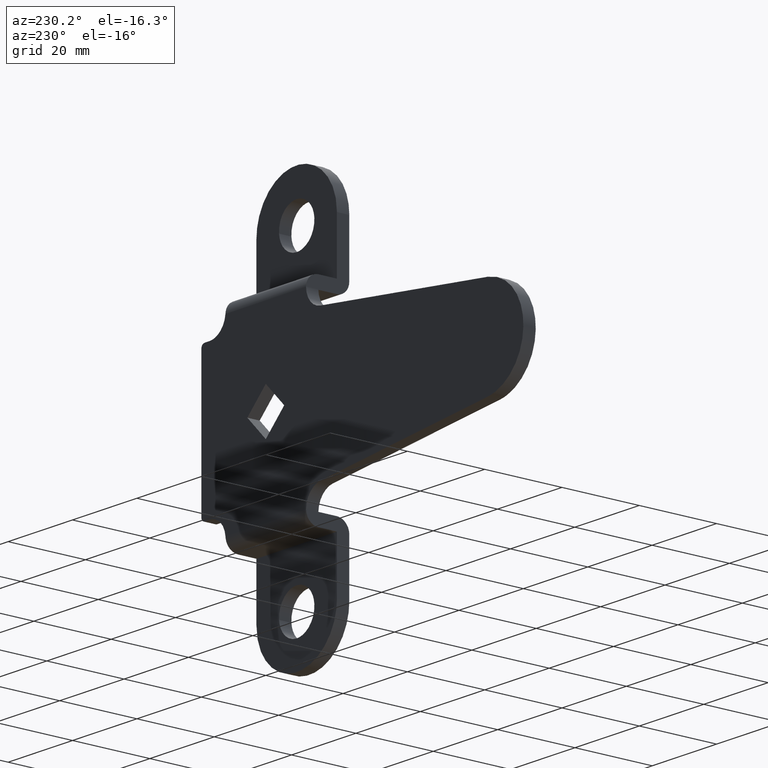
[diagram: clean part render]
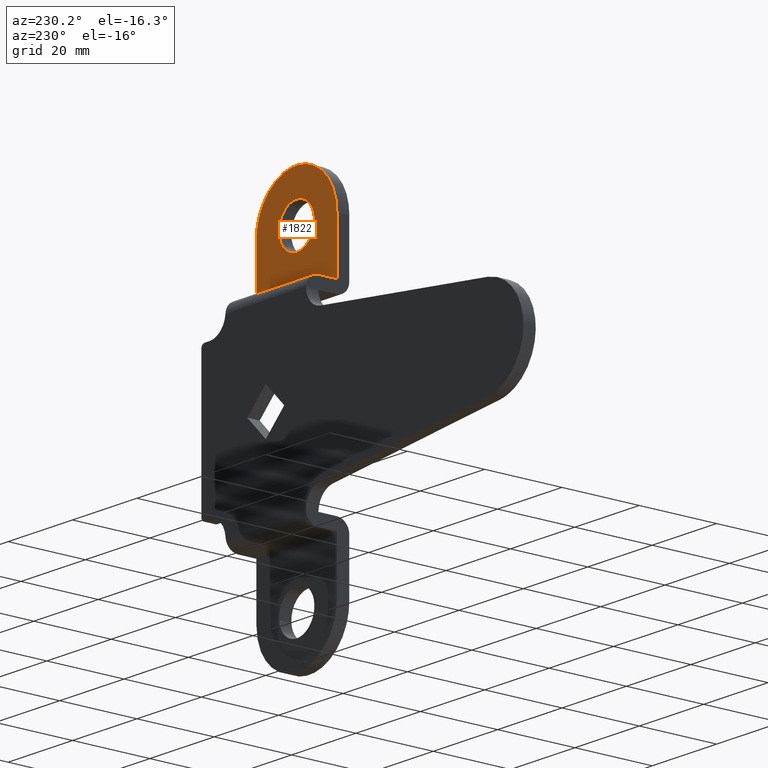
[diagram: same view with one face highlighted and labeled with its STEP entity id]
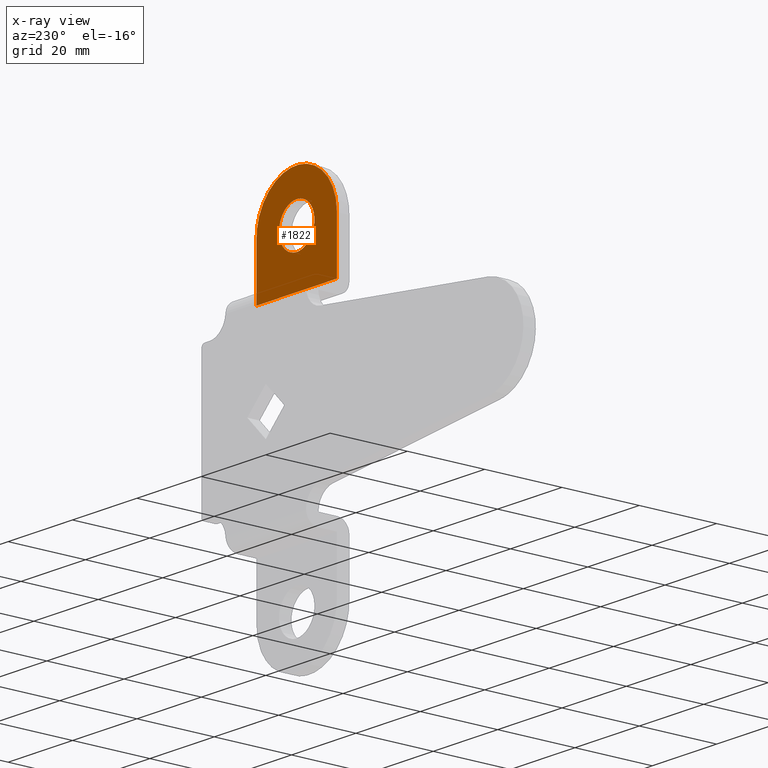
[diagram: x-ray of the same camera — body ghosted, the highlighted face saturated]
A machine part, auxiliary view. The second image highlights one B-rep face of the part: STEP entity #1822.
The next image is the same camera in x-ray: the body ghosted, the highlighted face saturated — about 0% of this face is hidden behind the body in this view.
In plain terms, the highlighted face is a freeform B-spline surface patch.
Its self-contained STEP definition (entity closure, byte-faithful):
#261=CARTESIAN_POINT('',(-5.483045335519359,-8.0,40.431525026666343));
#262=VERTEX_POINT('',#261);
#268=CARTESIAN_POINT('',(0.0,-8.0,45.500000000000000));
#269=VERTEX_POINT('',#268);
#270=CARTESIAN_POINT('',(0.0,-8.0,45.500000000000000));
#271=CARTESIAN_POINT('',(-5.084147703816561,-8.0,45.500000000000000));
#272=CARTESIAN_POINT('',(-5.483045335519359,-8.0,40.431525026666343));
#280=(BOUNDED_CURVE()B_SPLINE_CURVE(2,(#270,#271,#272),.UNSPECIFIED.,.F.,.U.)B_SPLINE_CURVE_WITH_KNOTS((3,3),(0.0,0.236331300622563),.UNSPECIFIED.)CURVE()GEOMETRIC_REPRESENTATION_ITEM()RATIONAL_B_SPLINE_CURVE((1.0,0.723120658617152,0.969723356150520))REPRESENTATION_ITEM(''));
#281=EDGE_CURVE('',#269,#262,#280,.T.);
#283=CARTESIAN_POINT('',(5.483045335519360,-8.0,39.568474973333657));
#284=VERTEX_POINT('',#283);
#285=CARTESIAN_POINT('',(5.483045335519360,-8.0,39.568474973333664));
#286=CARTESIAN_POINT('',(5.500000000000000,-8.0,39.783904411293861));
#287=CARTESIAN_POINT('',(5.500000000000000,-8.0,40.0));
#288=CARTESIAN_POINT('',(5.500000000000001,-8.0,45.500000000000014));
#289=CARTESIAN_POINT('',(0.0,-8.0,45.500000000000000));
#297=(BOUNDED_CURVE()B_SPLINE_CURVE(2,(#285,#286,#287,#288,#289),.UNSPECIFIED.,.F.,.U.)B_SPLINE_CURVE_WITH_KNOTS((3,2,3),(0.736331300622563,0.750000000000000,1.0),.UNSPECIFIED.)CURVE()GEOMETRIC_REPRESENTATION_ITEM()RATIONAL_B_SPLINE_CURVE((0.969723356150520,0.983986122569396,1.0,0.707106781186548,1.0))REPRESENTATION_ITEM(''));
#298=EDGE_CURVE('',#284,#269,#297,.T.);
#374=CARTESIAN_POINT('',(0.0,-8.0,34.500000000000000));
#375=VERTEX_POINT('',#374);
#376=CARTESIAN_POINT('',(0.0,-8.0,34.500000000000000));
#377=CARTESIAN_POINT('',(5.084147703816578,-8.0,34.500000000000007));
#378=CARTESIAN_POINT('',(5.483045335519360,-8.0,39.568474973333672));
#386=(BOUNDED_CURVE()B_SPLINE_CURVE(2,(#376,#377,#378),.UNSPECIFIED.,.F.,.U.)B_SPLINE_CURVE_WITH_KNOTS((3,3),(0.500000000000000,0.736331300622563),.UNSPECIFIED.)CURVE()GEOMETRIC_REPRESENTATION_ITEM()RATIONAL_B_SPLINE_CURVE((1.0,0.723120658617151,0.969723356150521))REPRESENTATION_ITEM(''));
#387=EDGE_CURVE('',#375,#284,#386,.T.);
#389=CARTESIAN_POINT('',(-5.483045335519359,-8.0,40.431525026666343));
#390=CARTESIAN_POINT('',(-5.500000000000001,-8.0,40.216095588706132));
#391=CARTESIAN_POINT('',(-5.500000000000000,-8.0,40.0));
#392=CARTESIAN_POINT('',(-5.500000000000001,-8.0,34.500000000000000));
#393=CARTESIAN_POINT('',(0.0,-8.0,34.500000000000000));
#401=(BOUNDED_CURVE()B_SPLINE_CURVE(2,(#389,#390,#391,#392,#393),.UNSPECIFIED.,.F.,.U.)B_SPLINE_CURVE_WITH_KNOTS((3,2,3),(0.236331300622563,0.250000000000000,0.500000000000000),.UNSPECIFIED.)CURVE()GEOMETRIC_REPRESENTATION_ITEM()RATIONAL_B_SPLINE_CURVE((0.969723356150520,0.983986122569396,1.0,0.707106781186548,1.0))REPRESENTATION_ITEM(''));
#402=EDGE_CURVE('',#262,#375,#401,.T.);
#1125=CARTESIAN_POINT('',(-12.500000000000000,-8.0,26.199999999999999));
#1126=VERTEX_POINT('',#1125);
#1176=CARTESIAN_POINT('',(-12.500000000000000,-8.0,40.0));
#1177=VERTEX_POINT('',#1176);
#1183=CARTESIAN_POINT('',(-12.500000000000000,-8.0,26.199999999999999));
#1184=CARTESIAN_POINT('',(-12.500000000000000,-8.0,40.0));
#1185=QUASI_UNIFORM_CURVE('',1,(#1183,#1184),.UNSPECIFIED.,.F.,.U.);
#1186=EDGE_CURVE('',#1126,#1177,#1185,.T.);
#1209=CARTESIAN_POINT('',(12.500000000000000,-8.0,40.0));
#1210=VERTEX_POINT('',#1209);
#1211=CARTESIAN_POINT('',(-12.500000000000000,-8.0,40.0));
#1212=CARTESIAN_POINT('',(-12.499999999999998,-8.0,52.500000000000014));
#1213=CARTESIAN_POINT('',(0.0,-8.0,52.500000000000007));
#1214=CARTESIAN_POINT('',(12.499999999999998,-8.0,52.500000000000014));
#1215=CARTESIAN_POINT('',(12.500000000000000,-8.0,40.0));
#1223=(BOUNDED_CURVE()B_SPLINE_CURVE(2,(#1211,#1212,#1213,#1214,#1215),.UNSPECIFIED.,.F.,.U.)B_SPLINE_CURVE_WITH_KNOTS((3,2,3),(0.0,0.500000000000000,1.0),.UNSPECIFIED.)CURVE()GEOMETRIC_REPRESENTATION_ITEM()RATIONAL_B_SPLINE_CURVE((1.0,0.707106781186547,1.0,0.707106781186547,1.0))REPRESENTATION_ITEM(''));
#1224=EDGE_CURVE('',#1177,#1210,#1223,.T.);
#1302=CARTESIAN_POINT('',(12.500000000000000,-8.0,26.199999999999999));
#1303=VERTEX_POINT('',#1302);
#1309=CARTESIAN_POINT('',(12.500000000000000,-8.0,40.0));
#1310=CARTESIAN_POINT('',(12.500000000000000,-8.0,26.199999999999999));
#1311=QUASI_UNIFORM_CURVE('',1,(#1309,#1310),.UNSPECIFIED.,.F.,.U.);
#1312=EDGE_CURVE('',#1210,#1303,#1311,.T.);
#1548=CARTESIAN_POINT('',(-12.500000000000000,-8.0,26.199999999999999));
#1549=CARTESIAN_POINT('',(12.500000000000000,-8.0,26.199999999999999));
#1550=QUASI_UNIFORM_CURVE('',1,(#1548,#1549),.UNSPECIFIED.,.F.,.U.);
#1551=EDGE_CURVE('',#1126,#1303,#1550,.T.);
#1805=CARTESIAN_POINT('',(-13.748749951545150,-8.0,53.813684855063329));
#1806=CARTESIAN_POINT('',(-13.748749951545150,-8.0,24.886316320638201));
#1807=CARTESIAN_POINT('',(13.748750622097401,-8.0,53.813684855063329));
#1808=CARTESIAN_POINT('',(13.748750622097401,-8.0,24.886316320638201));
#1809=B_SPLINE_SURFACE_WITH_KNOTS('',1,1,((#1805,#1807),(#1806,#1808)),.UNSPECIFIED.,.F.,.F.,.U.,(2,2),(2,2),(0.0,28.927368534425131),(0.0,27.497500573642551),.UNSPECIFIED.);
#1810=ORIENTED_EDGE('',*,*,#1224,.T.);
#1811=ORIENTED_EDGE('',*,*,#1312,.T.);
#1812=ORIENTED_EDGE('',*,*,#1551,.F.);
#1813=ORIENTED_EDGE('',*,*,#1186,.T.);
#1814=EDGE_LOOP('',(#1810,#1811,#1812,#1813));
#1815=FACE_OUTER_BOUND('',#1814,.T.);
#1816=ORIENTED_EDGE('',*,*,#387,.T.);
#1817=ORIENTED_EDGE('',*,*,#298,.T.);
#1818=ORIENTED_EDGE('',*,*,#281,.T.);
#1819=ORIENTED_EDGE('',*,*,#402,.T.);
#1820=EDGE_LOOP('',(#1816,#1817,#1818,#1819));
#1821=FACE_BOUND('',#1820,.T.);
#1822=ADVANCED_FACE('',(#1815,#1821),#1809,.F.);